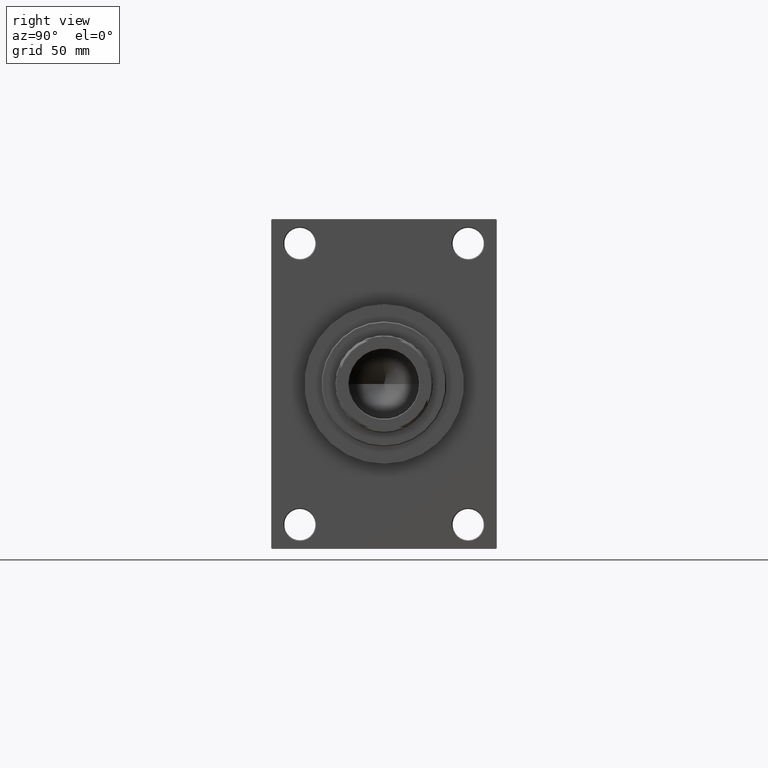
[diagram: clean part render]
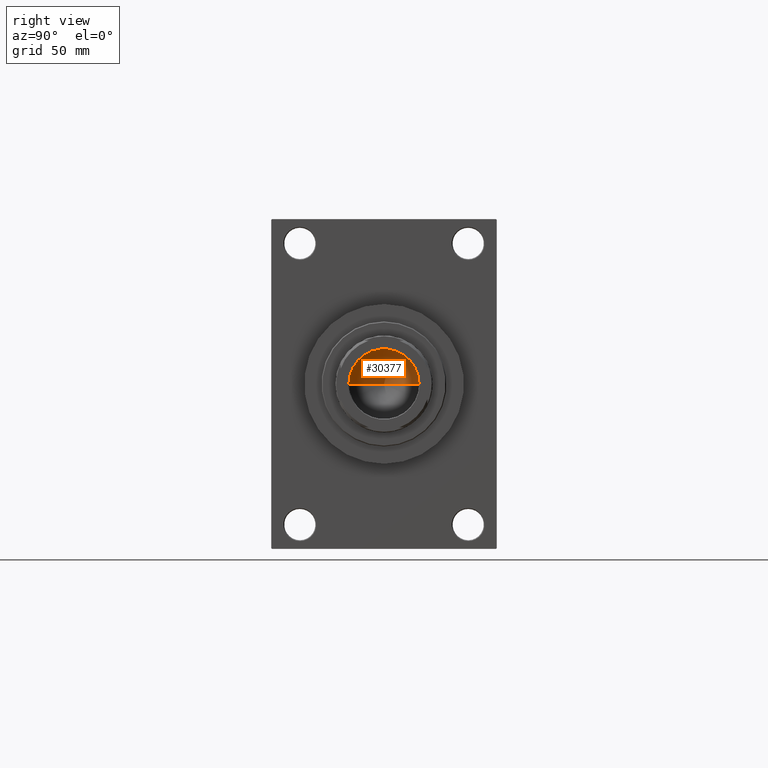
[diagram: same view with one face highlighted and labeled with its STEP entity id]
A machine part, right view. The second image highlights one B-rep face of the part: STEP entity #30377.
In plain terms, the highlighted conical surface has half-angle 59 deg.
Its self-contained STEP definition (entity closure, byte-faithful):
#310 = CARTESIAN_POINT ( 'NONE',  ( -20.24999999999998934, 2.479909768273389117E-15, 227.0000000000000284 ) ) ;
#5874 = EDGE_LOOP ( 'NONE', ( #26032, #37256, #31010 ) ) ;
#8989 = EDGE_CURVE ( 'NONE', #29819, #30780, #44241, .T. ) ;
#10947 = FACE_OUTER_BOUND ( 'NONE', #5874, .T. ) ;
#11117 = CONICAL_SURFACE ( 'NONE', #32771, 20.24999999999998934, 1.029744258676652313 ) ;
#11917 = CARTESIAN_POINT ( 'NONE',  ( -20.24999999999998934, 2.479909768273389117E-15, 227.0000000000000284 ) ) ;
#15029 = DIRECTION ( 'NONE',  ( -0.8571673007021112234, 1.049727191138617340E-16, 0.5150380749100560429 ) ) ;
#15913 = AXIS2_PLACEMENT_3D ( 'NONE', #28241, #28477, #46333 ) ;
#17130 = VECTOR ( 'NONE', #15029, 1000.000000000000000 ) ;
#22006 = CARTESIAN_POINT ( 'NONE',  ( 20.24999999999998934, 0.000000000000000000, 227.0000000000000284 ) ) ;
#22069 = DIRECTION ( 'NONE',  ( -0.000000000000000000, -0.000000000000000000, 1.000000000000000000 ) ) ;
#22139 = EDGE_CURVE ( 'NONE', #29819, #44213, #33405, .T. ) ;
#22262 = CARTESIAN_POINT ( 'NONE',  ( 20.24999999999998934, 0.000000000000000000, 227.0000000000000284 ) ) ;
#24818 = VECTOR ( 'NONE', #40618, 1000.000000000000000 ) ;
#24863 = CARTESIAN_POINT ( 'NONE',  ( -1.584115414415908206E-14, 0.000000000000000000, 214.8325724646919070 ) ) ;
#25460 = CARTESIAN_POINT ( 'NONE',  ( 0.000000000000000000, 0.000000000000000000, 227.0000000000000284 ) ) ;
#26032 = ORIENTED_EDGE ( 'NONE', *, *, #8989, .F. ) ;
#28241 = CARTESIAN_POINT ( 'NONE',  ( 0.000000000000000000, 0.000000000000000000, 227.0000000000000284 ) ) ;
#28477 = DIRECTION ( 'NONE',  ( -0.000000000000000000, -0.000000000000000000, 1.000000000000000000 ) ) ;
#29819 = VERTEX_POINT ( 'NONE', #24863 ) ;
#30377 = ADVANCED_FACE ( 'NONE', ( #10947 ), #11117, .F. ) ;
#30586 = CIRCLE ( 'NONE', #15913, 20.24999999999998934 ) ;
#30780 = VERTEX_POINT ( 'NONE', #22006 ) ;
#31010 = ORIENTED_EDGE ( 'NONE', *, *, #35734, .T. ) ;
#32771 = AXIS2_PLACEMENT_3D ( 'NONE', #25460, #22069, #47192 ) ;
#33405 = LINE ( 'NONE', #310, #17130 ) ;
#35734 = EDGE_CURVE ( 'NONE', #44213, #30780, #30586, .T. ) ;
#37256 = ORIENTED_EDGE ( 'NONE', *, *, #22139, .T. ) ;
#40618 = DIRECTION ( 'NONE',  ( 0.8571673007021112234, 0.000000000000000000, 0.5150380749100560429 ) ) ;
#44213 = VERTEX_POINT ( 'NONE', #11917 ) ;
#44241 = LINE ( 'NONE', #22262, #24818 ) ;
#46333 = DIRECTION ( 'NONE',  ( 1.000000000000000000, 0.000000000000000000, 0.000000000000000000 ) ) ;
#47192 = DIRECTION ( 'NONE',  ( 1.000000000000000000, 0.000000000000000000, 0.000000000000000000 ) ) ;